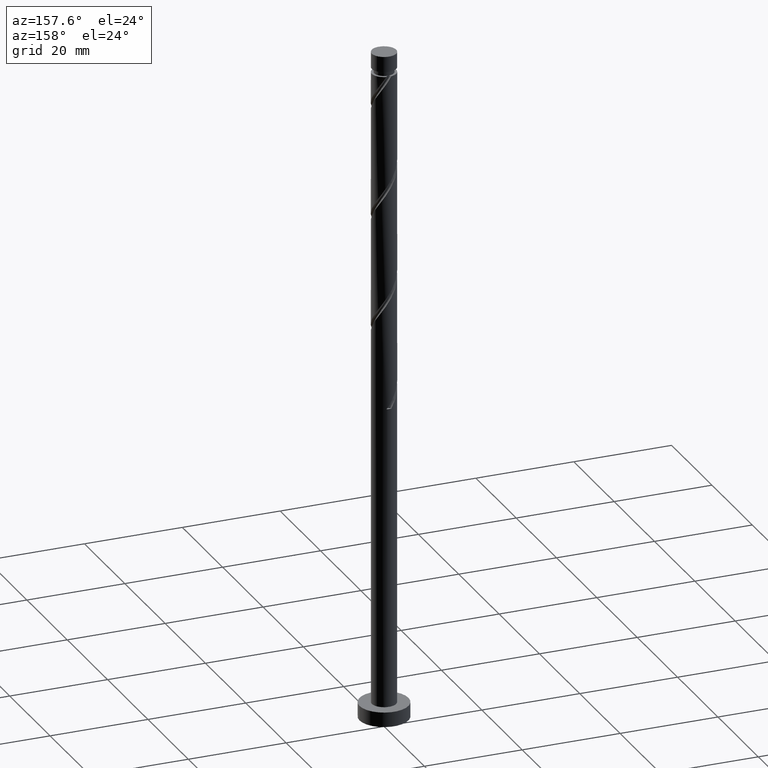
[diagram: clean part render]
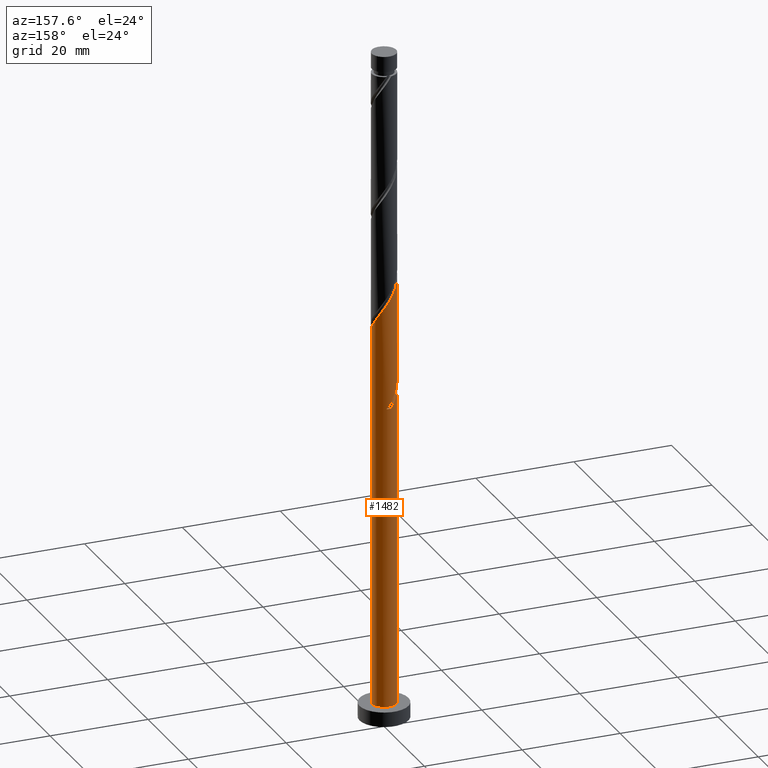
[diagram: same view with one face highlighted and labeled with its STEP entity id]
A machine part, auxiliary view. The second image highlights one B-rep face of the part: STEP entity #1482.
In plain terms, the highlighted cylindrical surface (edge-blend (fillet) strip) has radius 2.5 mm, axis along (-0, -0, -1).
Its self-contained STEP definition (entity closure, byte-faithful):
#4 = CARTESIAN_POINT ( 'NONE',  ( -2.500000000000000000, 0.000000000000000000, 137.4799999999999898 ) ) ;
#9 = CARTESIAN_POINT ( 'NONE',  ( -2.274511107092403339, 1.037592995212145430, 90.93145632047379934 ) ) ;
#22 = CARTESIAN_POINT ( 'NONE',  ( -2.110172521261067580, 1.397840163920917256, 90.35862298714049246 ) ) ;
#43 = CARTESIAN_POINT ( 'NONE',  ( 0.2839469933725889961, 2.483822478550889112, 86.34878965380713112 ) ) ;
#72 = CARTESIAN_POINT ( 'NONE',  ( -2.499999999999999112, -3.118565378906798285E-15, 71.04063263770045467 ) ) ;
#80 = CARTESIAN_POINT ( 'NONE',  ( -2.500000000000000000, 0.000000000000000000, 137.4799999999999898 ) ) ;
#97 = CARTESIAN_POINT ( 'NONE',  ( -0.8855355973484256848, 2.371204735821965226, 88.06728965380715124 ) ) ;
#118 = EDGE_CURVE ( 'NONE', #616, #1400, #770, .T. ) ;
#143 = EDGE_CURVE ( 'NONE', #802, #475, #490, .T. ) ;
#161 = CARTESIAN_POINT ( 'NONE',  ( -2.500000000000003997, -3.163544687256392329E-15, 92.49161333658051376 ) ) ;
#163 = ORIENTED_EDGE ( 'NONE', *, *, #234, .T. ) ;
#166 = DIRECTION ( 'NONE',  ( -0.000000000000000000, -0.000000000000000000, -1.000000000000000000 ) ) ;
#198 = AXIS2_PLACEMENT_3D ( 'NONE', #861, #1109, #750 ) ;
#201 = LINE ( 'NONE', #80, #553 ) ;
#202 = VERTEX_POINT ( 'NONE', #161 ) ;
#203 = CARTESIAN_POINT ( 'NONE',  ( -0.6773458265033717174, 2.438849692923733326, 66.29962298714045232 ) ) ;
#207 = CARTESIAN_POINT ( 'NONE',  ( -0.4974937185533105932, 2.450000000000003286, 87.49445632047381594 ) ) ;
#234 = EDGE_CURVE ( 'NONE', #1163, #1139, #897, .T. ) ;
#251 = CARTESIAN_POINT ( 'NONE',  ( -2.500000000000004441, 0.1424343436160736276, 92.28318146022678548 ) ) ;
#254 = CARTESIAN_POINT ( 'NONE',  ( -2.274511107092403339, 1.037592995212145430, 68.01812298714045824 ) ) ;
#256 = EDGE_CURVE ( 'NONE', #616, #802, #487, .T. ) ;
#278 = CARTESIAN_POINT ( 'NONE',  ( -1.842554741020976605, 1.689672165344845656, 66.87245632047383026 ) ) ;
#285 = CARTESIAN_POINT ( 'NONE',  ( -2.500000000000000444, 0.2512594538147984724, 70.67295109348391691 ) ) ;
#299 = CIRCLE ( 'NONE', #1240, 2.500000000000000000 ) ;
#312 = DIRECTION ( 'NONE',  ( -1.000000000000000000, 0.000000000000000000, 0.000000000000000000 ) ) ;
#316 = CARTESIAN_POINT ( 'NONE',  ( -2.500000000000000000, 0.000000000000000000, 3.000000000000000000 ) ) ;
#335 = CARTESIAN_POINT ( 'NONE',  ( -2.371204735821960785, 0.8855355973484245746, 69.73662298714049257 ) ) ;
#342 = CARTESIAN_POINT ( 'NONE',  ( 1.981504166768774056, 1.574936960780886075, 83.48462298714045460 ) ) ;
#345 = DIRECTION ( 'NONE',  ( -0.000000000000000000, -0.000000000000000000, -1.000000000000000000 ) ) ;
#358 = ORIENTED_EDGE ( 'NONE', *, *, #1212, .F. ) ;
#363 = CARTESIAN_POINT ( 'NONE',  ( -2.483822478550889112, 0.2839469933725885520, 92.07712298714049837 ) ) ;
#366 = EDGE_CURVE ( 'NONE', #202, #885, #201, .T. ) ;
#377 = ORIENTED_EDGE ( 'NONE', *, *, #366, .F. ) ;
#445 = CARTESIAN_POINT ( 'NONE',  ( 1.689672165344846100, 1.842554741020976605, 84.05745632047381832 ) ) ;
#451 = CARTESIAN_POINT ( 'NONE',  ( -0.1094518397581961400, 2.528795264178041791, 86.92162298714045221 ) ) ;
#452 = CARTESIAN_POINT ( 'NONE',  ( 1.037592995212145874, 2.274511107092402451, 85.20312298714047472 ) ) ;
#462 = CARTESIAN_POINT ( 'NONE',  ( 2.371204735821965226, 0.8855355973484252408, 82.33895632047379820 ) ) ;
#475 = VERTEX_POINT ( 'NONE', #316 ) ;
#487 =( BOUNDED_CURVE ( )  B_SPLINE_CURVE ( 2, ( #1017, #1350, #1495, #1370, #278, #644, #254, #1108, #1340, #488, #982 ),
 .UNSPECIFIED., .F., .T. ) 
 B_SPLINE_CURVE_WITH_KNOTS ( ( 3, 2, 2, 2, 2, 3 ),
 ( 0.000000000000000000, 0.01249999999999995559, 0.02500000000000002220, 0.03749999999999997780, 0.05000000000000004441, 0.05453220231385504796 ),
 .UNSPECIFIED. ) 
 CURVE ( )  GEOMETRIC_REPRESENTATION_ITEM ( )  RATIONAL_B_SPLINE_CURVE ( ( 0.9090909090909222723, 0.8978984914501381143, 0.9090909090909222723, 0.8978984914501381143, 0.9090909090909222723, 0.8978984914501381143, 0.9090909090909222723, 0.8978984914501381143, 0.9090909090909222723, 0.9050328050005868041, 0.9039174447099445064 ) ) 
 REPRESENTATION_ITEM ( '' )  );
#488 = CARTESIAN_POINT ( 'NONE',  ( -2.500000000000002665, 0.1424343436160869503, 69.36984812689340174 ) ) ;
#490 = LINE ( 'NONE', #4, #1386 ) ;
#493 = CARTESIAN_POINT ( 'NONE',  ( 2.500000000000003553, 2.803710220459456568E-15, 81.03494666991382189 ) ) ;
#497 = FACE_OUTER_BOUND ( 'NONE', #864, .T. ) ;
#533 = CARTESIAN_POINT ( 'NONE',  ( 2.500000000000003553, 2.803710220459456568E-15, 81.03494666991382189 ) ) ;
#553 = VECTOR ( 'NONE', #166, 1000.000000000000000 ) ;
#563 = CARTESIAN_POINT ( 'NONE',  ( 0.1094518397581970837, 2.528795264178037794, 65.15395632047379593 ) ) ;
#574 = AXIS2_PLACEMENT_3D ( 'NONE', #1533, #1410, #312 ) ;
#598 = ORIENTED_EDGE ( 'NONE', *, *, #143, .F. ) ;
#599 = CYLINDRICAL_SURFACE ( 'NONE', #198, 2.500000000000000000 ) ;
#603 = CARTESIAN_POINT ( 'NONE',  ( -1.842554741020976605, 1.689672165344845656, 89.78578965380712873 ) ) ;
#606 = DIRECTION ( 'NONE',  ( 0.000000000000000000, 0.000000000000000000, 1.000000000000000000 ) ) ;
#616 = VERTEX_POINT ( 'NONE', #1574 ) ;
#619 = CARTESIAN_POINT ( 'NONE',  ( -2.500000000000003997, -3.163544687256392329E-15, 69.57828000324714424 ) ) ;
#644 = CARTESIAN_POINT ( 'NONE',  ( -2.110172521261067580, 1.397840163920917256, 67.44528965380715135 ) ) ;
#680 = CARTESIAN_POINT ( 'NONE',  ( -1.574936960780886297, 1.981504166768773612, 89.21295632047377921 ) ) ;
#683 = CARTESIAN_POINT ( 'NONE',  ( 1.397840163920917256, 2.110172521261066692, 84.63028965380715363 ) ) ;
#691 = CARTESIAN_POINT ( 'NONE',  ( -1.037592995212142988, 2.274511107092398010, 66.87245632047378763 ) ) ;
#701 = CARTESIAN_POINT ( 'NONE',  ( 0.6773458265033739378, 2.438849692923737766, 85.77595632047378160 ) ) ;
#741 = CARTESIAN_POINT ( 'NONE',  ( 2.500000000000000000, 3.061616997868383141E-16, 137.4799999999999898 ) ) ;
#750 = DIRECTION ( 'NONE',  ( -1.000000000000000000, 0.000000000000000000, 0.000000000000000000 ) ) ;
#757 = DIRECTION ( 'NONE',  ( -0.000000000000000000, -0.000000000000000000, -1.000000000000000000 ) ) ;
#770 = CIRCLE ( 'NONE', #574, 2.500000000000000000 ) ;
#802 = VERTEX_POINT ( 'NONE', #619 ) ;
#822 = ORIENTED_EDGE ( 'NONE', *, *, #988, .F. ) ;
#824 = CARTESIAN_POINT ( 'NONE',  ( 0.4974937185533113704, 2.449999999999998401, 64.58112298714047483 ) ) ;
#859 = CARTESIAN_POINT ( 'NONE',  ( -2.500000000000003997, -3.163544687256392329E-15, 92.49161333658051376 ) ) ;
#861 = CARTESIAN_POINT ( 'NONE',  ( 0.000000000000000000, 0.000000000000000000, 137.4799999999999898 ) ) ;
#864 = EDGE_LOOP ( 'NONE', ( #822, #163, #1045, #598, #1547, #1253, #358, #377 ) ) ;
#885 = VERTEX_POINT ( 'NONE', #1397 ) ;
#892 =( BOUNDED_CURVE ( )  B_SPLINE_CURVE ( 2, ( #493, #1295, #1317, #462, #1539, #342, #445, #683, #452, #701, #43, #451, #207, #97, #1559, #680, #603, #22, #9, #1460, #363, #251, #859 ),
 .UNSPECIFIED., .F., .T. ) 
 B_SPLINE_CURVE_WITH_KNOTS ( ( 3, 2, 2, 2, 2, 2, 2, 2, 2, 2, 2, 3 ),
 ( 0.1795322023138551104, 0.1875000000000000000, 0.1999999999999999556, 0.2125000000000000222, 0.2249999999999999778, 0.2375000000000000444, 0.2500000000000000000, 0.2624999999999999556, 0.2750000000000000222, 0.2874999999999999778, 0.3000000000000000444, 0.3045322023138554712 ),
 .UNSPECIFIED. ) 
 CURVE ( )  GEOMETRIC_REPRESENTATION_ITEM ( )  RATIONAL_B_SPLINE_CURVE ( ( 0.9039174447099443954, 0.9019565955404735824, 0.9090909090909222723, 0.8978984914501381143, 0.9090909090909222723, 0.8978984914501381143, 0.9090909090909222723, 0.8978984914501381143, 0.9090909090909222723, 0.8978984914501381143, 0.9090909090909222723, 0.8978984914501381143, 0.9090909090909222723, 0.8978984914501381143, 0.9090909090909222723, 0.8978984914501381143, 0.9090909090909222723, 0.8978984914501381143, 0.9090909090909222723, 0.8978984914501381143, 0.9090909090909222723, 0.9050328050005863600, 0.9039174447099442844 ) ) 
 REPRESENTATION_ITEM ( '' )  );
#897 = LINE ( 'NONE', #741, #1390 ) ;
#954 = CARTESIAN_POINT ( 'NONE',  ( -1.981504166768769837, 1.574936960780883632, 68.59095632047380775 ) ) ;
#982 = CARTESIAN_POINT ( 'NONE',  ( -2.500000000000003997, -3.163544687256392329E-15, 69.57828000324714424 ) ) ;
#988 = EDGE_CURVE ( 'NONE', #1163, #202, #892, .T. ) ;
#991 = DIRECTION ( 'NONE',  ( 1.000000000000000000, 0.000000000000000000, 0.000000000000000000 ) ) ;
#1011 = CARTESIAN_POINT ( 'NONE',  ( 0.000000000000000000, 0.000000000000000000, 3.000000000000000000 ) ) ;
#1017 = CARTESIAN_POINT ( 'NONE',  ( -0.4974937185533105932, 2.450000000000003286, 64.58112298714047483 ) ) ;
#1045 = ORIENTED_EDGE ( 'NONE', *, *, #1500, .T. ) ;
#1108 = CARTESIAN_POINT ( 'NONE',  ( -2.438849692923737766, 0.6773458265033734937, 68.59095632047382196 ) ) ;
#1109 = DIRECTION ( 'NONE',  ( -0.000000000000000000, -0.000000000000000000, -1.000000000000000000 ) ) ;
#1139 = VERTEX_POINT ( 'NONE', #1252 ) ;
#1163 = VERTEX_POINT ( 'NONE', #533 ) ;
#1188 = CARTESIAN_POINT ( 'NONE',  ( -1.689672165344841659, 1.842554741020973719, 68.01812298714047245 ) ) ;
#1212 = EDGE_CURVE ( 'NONE', #885, #1400, #1468, .T. ) ;
#1240 = AXIS2_PLACEMENT_3D ( 'NONE', #1011, #606, #991 ) ;
#1252 = CARTESIAN_POINT ( 'NONE',  ( 2.500000000000000000, 3.061616997868383141E-16, 3.000000000000000000 ) ) ;
#1253 = ORIENTED_EDGE ( 'NONE', *, *, #118, .T. ) ;
#1276 = CARTESIAN_POINT ( 'NONE',  ( -2.449999999999998401, 0.4974937185533108153, 70.30945632047379945 ) ) ;
#1295 = CARTESIAN_POINT ( 'NONE',  ( 2.500000000000003997, 0.2512594538148005263, 81.40262821413037386 ) ) ;
#1317 = CARTESIAN_POINT ( 'NONE',  ( 2.450000000000003286, 0.4974937185533108153, 81.76612298714049132 ) ) ;
#1335 = CARTESIAN_POINT ( 'NONE',  ( 0.4974937185533113704, 2.449999999999998401, 64.58112298714047483 ) ) ;
#1340 = CARTESIAN_POINT ( 'NONE',  ( -2.483822478550889112, 0.2839469933725885520, 69.16378965380715726 ) ) ;
#1350 = CARTESIAN_POINT ( 'NONE',  ( -0.8855355973484256848, 2.371204735821965226, 65.15395632047381014 ) ) ;
#1370 = CARTESIAN_POINT ( 'NONE',  ( -1.574936960780886297, 1.981504166768773612, 66.29962298714046653 ) ) ;
#1386 = VECTOR ( 'NONE', #345, 1000.000000000000000 ) ;
#1390 = VECTOR ( 'NONE', #757, 1000.000000000000000 ) ;
#1397 = CARTESIAN_POINT ( 'NONE',  ( -2.499999999999999112, -3.118565378906798285E-15, 71.04063263770045467 ) ) ;
#1400 = VERTEX_POINT ( 'NONE', #1335 ) ;
#1410 = DIRECTION ( 'NONE',  ( 0.000000000000000000, -0.000000000000000000, -1.000000000000000000 ) ) ;
#1440 = CARTESIAN_POINT ( 'NONE',  ( -1.397840163920914147, 2.110172521261064027, 67.44528965380713714 ) ) ;
#1460 = CARTESIAN_POINT ( 'NONE',  ( -2.438849692923737766, 0.6773458265033734937, 91.50428965380713464 ) ) ;
#1468 =( BOUNDED_CURVE ( )  B_SPLINE_CURVE ( 2, ( #72, #285, #1276, #335, #1555, #954, #1188, #1440, #691, #203, #1540, #563, #824 ),
 .UNSPECIFIED., .F., .T. ) 
 B_SPLINE_CURVE_WITH_KNOTS ( ( 3, 2, 2, 2, 2, 2, 3 ),
 ( 0.9295322023138550271, 0.9375000000000000000, 0.9499999999999999556, 0.9625000000000000222, 0.9749999999999999778, 0.9875000000000000444, 1.000000000000000000 ),
 .UNSPECIFIED. ) 
 CURVE ( )  GEOMETRIC_REPRESENTATION_ITEM ( )  RATIONAL_B_SPLINE_CURVE ( ( 0.9039174447099376231, 0.9019565955404666990, 0.9090909090909153889, 0.8978984914501313419, 0.9090909090909153889, 0.8978984914501313419, 0.9090909090909153889, 0.8978984914501313419, 0.9090909090909153889, 0.8978984914501313419, 0.9090909090909153889, 0.8978984914501313419, 0.9090909090909153889 ) ) 
 REPRESENTATION_ITEM ( '' )  );
#1482 = ADVANCED_FACE ( 'NONE', ( #497 ), #599, .T. ) ;
#1495 = CARTESIAN_POINT ( 'NONE',  ( -1.230236279064655935, 2.176354451295369863, 65.72678965380714544 ) ) ;
#1500 = EDGE_CURVE ( 'NONE', #1139, #475, #299, .T. ) ;
#1533 = CARTESIAN_POINT ( 'NONE',  ( 0.000000000000000000, 0.000000000000000000, 64.58112298714047483 ) ) ;
#1539 = CARTESIAN_POINT ( 'NONE',  ( 2.176354451295370307, 1.230236279064655491, 82.91178965380713350 ) ) ;
#1540 = CARTESIAN_POINT ( 'NONE',  ( -0.2839469933725872752, 2.483822478550883783, 65.72678965380711702 ) ) ;
#1547 = ORIENTED_EDGE ( 'NONE', *, *, #256, .F. ) ;
#1555 = CARTESIAN_POINT ( 'NONE',  ( -2.176354451295364978, 1.230236279064653715, 69.16378965380712884 ) ) ;
#1559 = CARTESIAN_POINT ( 'NONE',  ( -1.230236279064655935, 2.176354451295369863, 88.64012298714047233 ) ) ;
#1574 = CARTESIAN_POINT ( 'NONE',  ( -0.4974937185533105932, 2.450000000000003286, 64.58112298714047483 ) ) ;